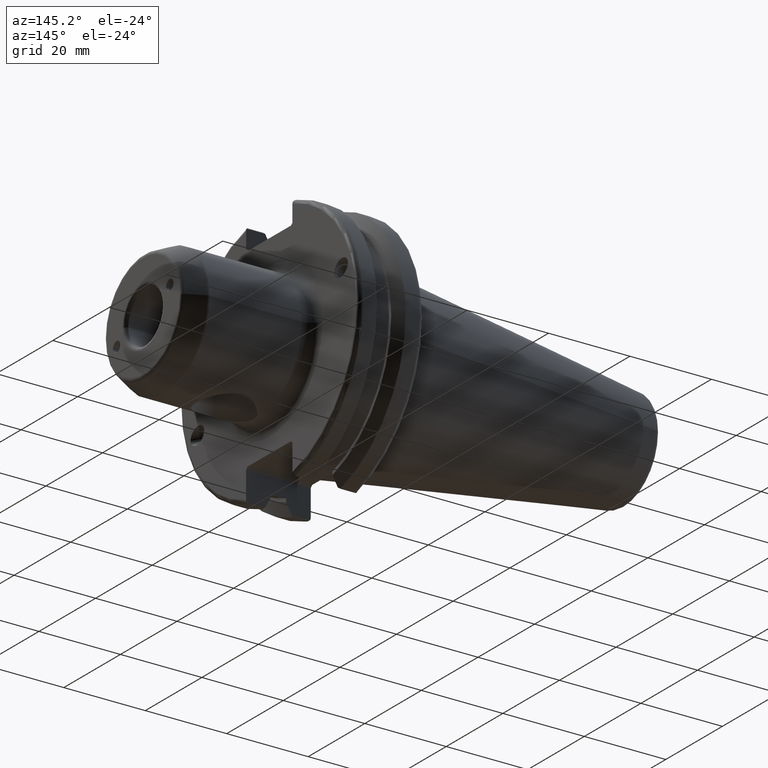
[diagram: clean part render]
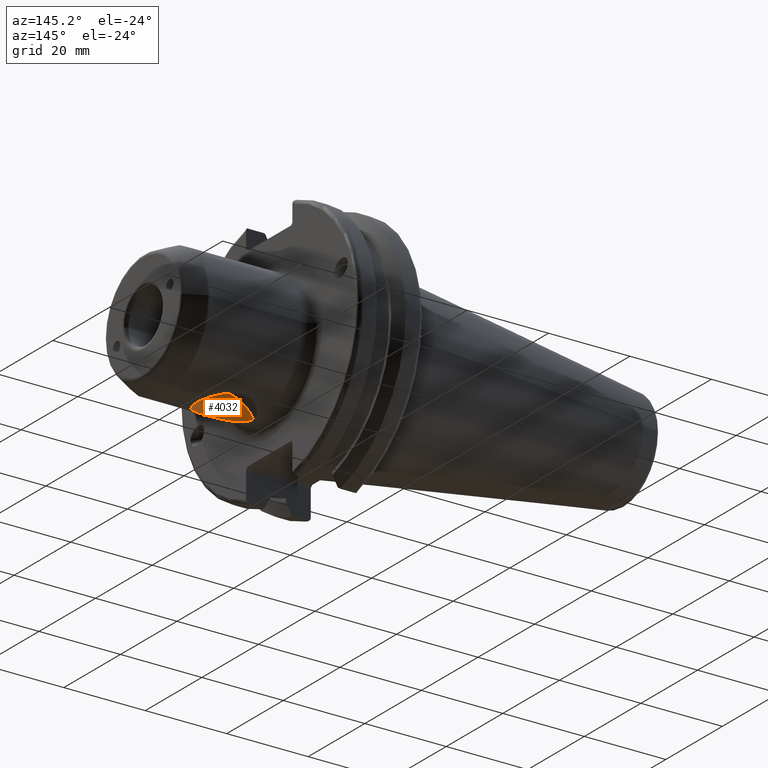
[diagram: same view with one face highlighted and labeled with its STEP entity id]
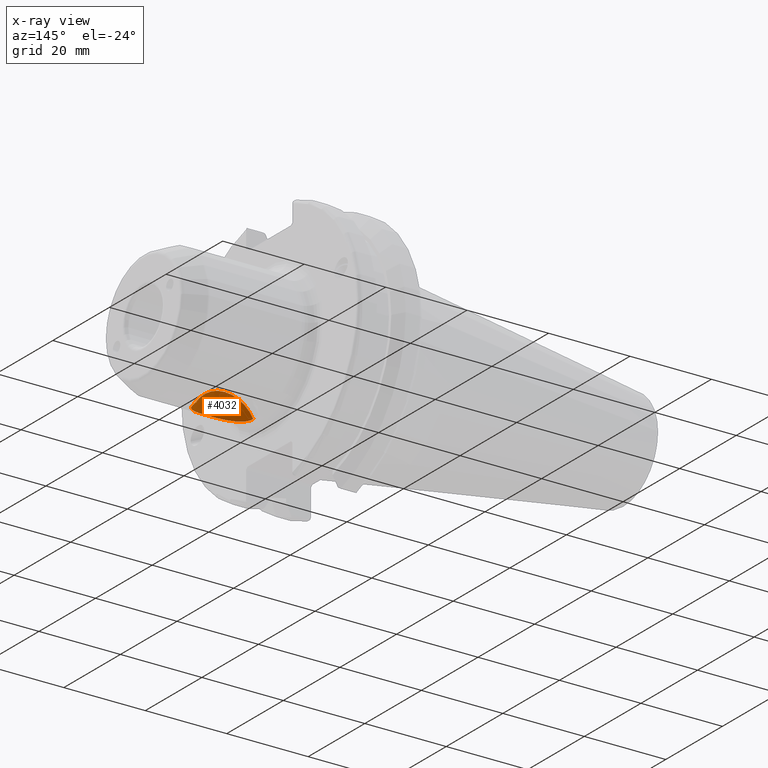
[diagram: x-ray of the same camera — body ghosted, the highlighted face saturated]
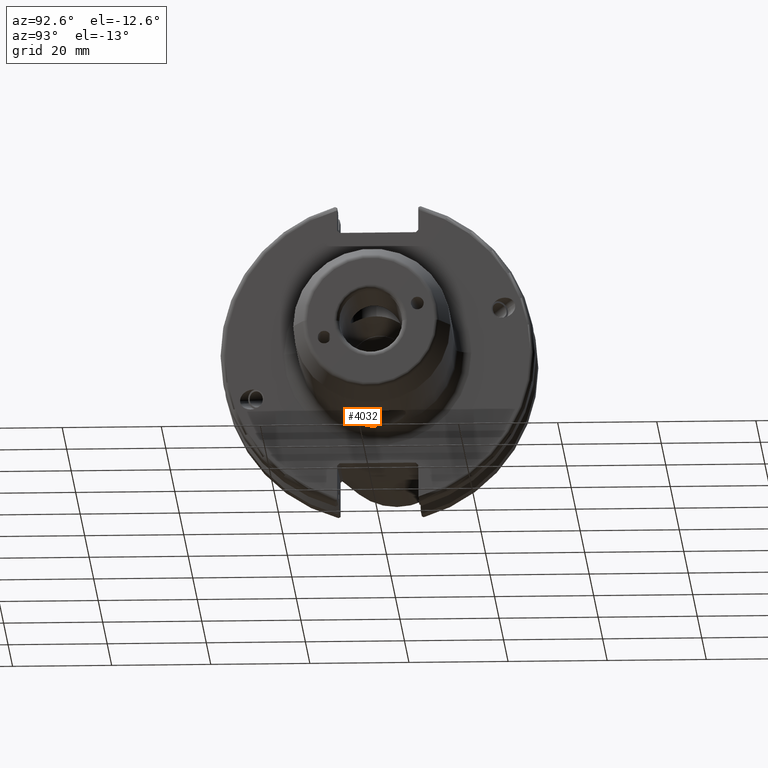
[diagram: same view with one face highlighted and labeled with its STEP entity id]
A machine part, auxiliary view. The second image highlights one B-rep face of the part: STEP entity #4032.
The next image is the same camera in x-ray: the body ghosted, the highlighted face saturated — about 0% of this face is hidden behind the body in this view.
A second angle (auxiliary view) of the same face is appended — the face is thin or edge-on in the first view.
In plain terms, the highlighted spherical surface has radius 8 mm.
Its self-contained STEP definition (entity closure, byte-faithful):
#1706=CARTESIAN_POINT('',(2.296011363728E1,4.862180873613E-14,-1.59E1));
#1725=CARTESIAN_POINT('',(3.703988636272E1,-3.754730822001E-14,-1.59E1));
#1727=CARTESIAN_POINT('',(3.703988636272E1,-3.754730822001E-14,-1.59E1));
#1728=CARTESIAN_POINT('',(3.703988636272E1,-4.008565209895E-1,-1.59E1));
#1729=CARTESIAN_POINT('',(3.695874166794E1,-1.188707712907E0,
-1.587067206925E1));
#1730=CARTESIAN_POINT('',(3.656937118054E1,-2.373702504772E0,
-1.573542417822E1));
#1731=CARTESIAN_POINT('',(3.596797175333E1,-3.402503275921E0,
-1.554198465302E1));
#1732=CARTESIAN_POINT('',(3.517307099136E1,-4.302456898696E0,
-1.531482859428E1));
#1733=CARTESIAN_POINT('',(3.421351496426E1,-5.045526648348E0,
-1.508359824646E1));
#1734=CARTESIAN_POINT('',(3.309394724492E1,-5.629812132574E0,
-1.487306507205E1));
#1735=CARTESIAN_POINT('',(3.184179124112E1,-6.028292891189E0,
-1.471392687025E1));
#1736=CARTESIAN_POINT('',(3.056348657039E1,-6.207621812855E0,
-1.463815544296E1));
#1737=CARTESIAN_POINT('',(2.940674415543E1,-6.207734006113E0,
-1.463813569761E1));
#1738=CARTESIAN_POINT('',(2.807711947131E1,-6.011263219337E0,
-1.472102316749E1));
#1739=CARTESIAN_POINT('',(2.682507066019E1,-5.595928829108E0,
-1.488608335570E1));
#1740=CARTESIAN_POINT('',(2.570520895597E1,-4.993166980913E0,
-1.510125763983E1));
#1741=CARTESIAN_POINT('',(2.476548166567E1,-4.242620097677E0,
-1.533146246579E1));
#1742=CARTESIAN_POINT('',(2.399615441893E1,-3.350239553033E0,
-1.555314651257E1));
#1743=CARTESIAN_POINT('',(2.341430810590E1,-2.332817496151E0,
-1.574101786972E1));
#1744=CARTESIAN_POINT('',(2.304022214464E1,-1.175265592687E0,
-1.587107462467E1));
#1745=CARTESIAN_POINT('',(2.296011363728E1,-3.968219799859E-1,-1.59E1));
#1746=CARTESIAN_POINT('',(2.296011363728E1,4.862180873613E-14,-1.59E1));
#1768=CARTESIAN_POINT('',(3.E1,0.E0,-1.97E1));
#1769=DIRECTION('',(0.E0,-1.E0,0.E0));
#1770=DIRECTION('',(8.799857953399E-1,0.E0,4.75E-1));
#1771=AXIS2_PLACEMENT_3D('',#1768,#1769,#1770);
#1773=CARTESIAN_POINT('',(3.E1,0.E0,-1.97E1));
#1774=DIRECTION('',(0.E0,1.E0,0.E0));
#1775=DIRECTION('',(-8.799857953399E-1,0.E0,4.75E-1));
#1776=AXIS2_PLACEMENT_3D('',#1773,#1774,#1775);
#2337=VERTEX_POINT('',#1706);
#2338=VERTEX_POINT('',#1725);
#2339=CARTESIAN_POINT('',(3.E1,0.E0,-1.17E1));
#2340=VERTEX_POINT('',#2339);
#4022=CARTESIAN_POINT('',(3.E1,0.E0,-1.97E1));
#4023=DIRECTION('',(0.E0,0.E0,-1.E0));
#4024=DIRECTION('',(1.E0,0.E0,0.E0));
#4025=AXIS2_PLACEMENT_3D('',#4022,#4023,#4024);
#4026=SPHERICAL_SURFACE('',#4025,8.E0);
#4027=ORIENTED_EDGE('',*,*,#3978,.F.);
#4028=ORIENTED_EDGE('',*,*,#4017,.T.);
#4029=ORIENTED_EDGE('',*,*,#4015,.F.);
#4030=EDGE_LOOP('',(#4027,#4028,#4029));
#4031=FACE_OUTER_BOUND('',#4030,.F.);
#4032=ADVANCED_FACE('',(#4031),#4026,.F.);
#1747=B_SPLINE_CURVE_WITH_KNOTS('',3,(#1727,#1728,#1729,#1730,#1731,#1732,#1733,
#1734,#1735,#1736,#1737,#1738,#1739,#1740,#1741,#1742,#1743,#1744,#1745,#1746),
.UNSPECIFIED.,.F.,.F.,(4,1,1,1,1,1,1,1,1,1,1,1,1,1,1,1,1,4),(0.E0,
5.882352941176E-2,1.176470588235E-1,1.764705882353E-1,2.352941176471E-1,
2.941176470588E-1,3.529411764706E-1,4.117647058824E-1,4.705882352941E-1,
5.294117647059E-1,5.882352941176E-1,6.470588235294E-1,7.058823529412E-1,
7.647058823529E-1,8.235294117647E-1,8.823529411765E-1,9.411764705882E-1,1.E0),
.UNSPECIFIED.);
#1772=CIRCLE('',#1771,8.E0);
#1777=CIRCLE('',#1776,8.E0);
#3978=EDGE_CURVE('',#2338,#2337,#1747,.T.);
#4015=EDGE_CURVE('',#2337,#2340,#1777,.T.);
#4017=EDGE_CURVE('',#2338,#2340,#1772,.T.);